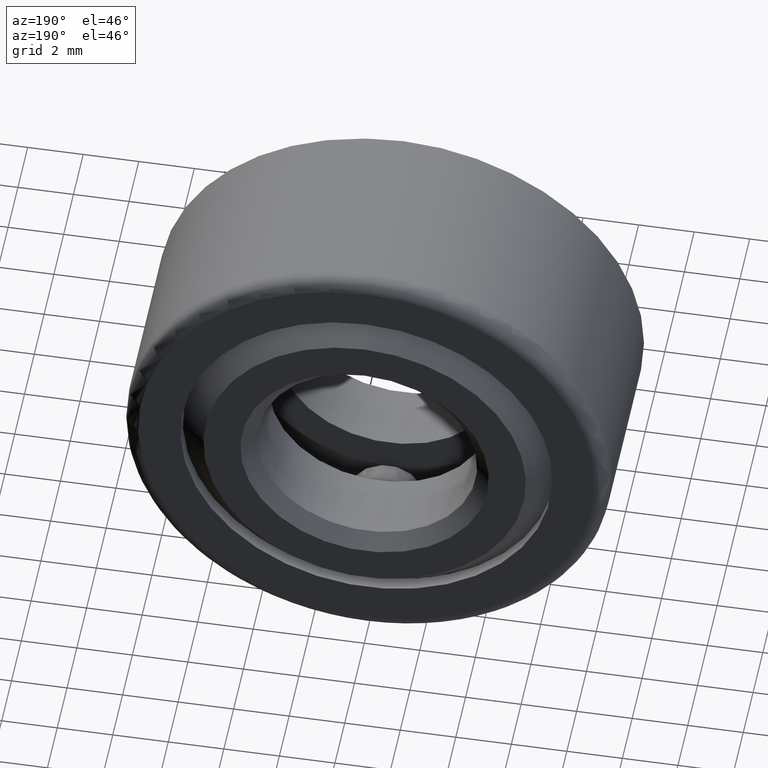
[diagram: clean part render]
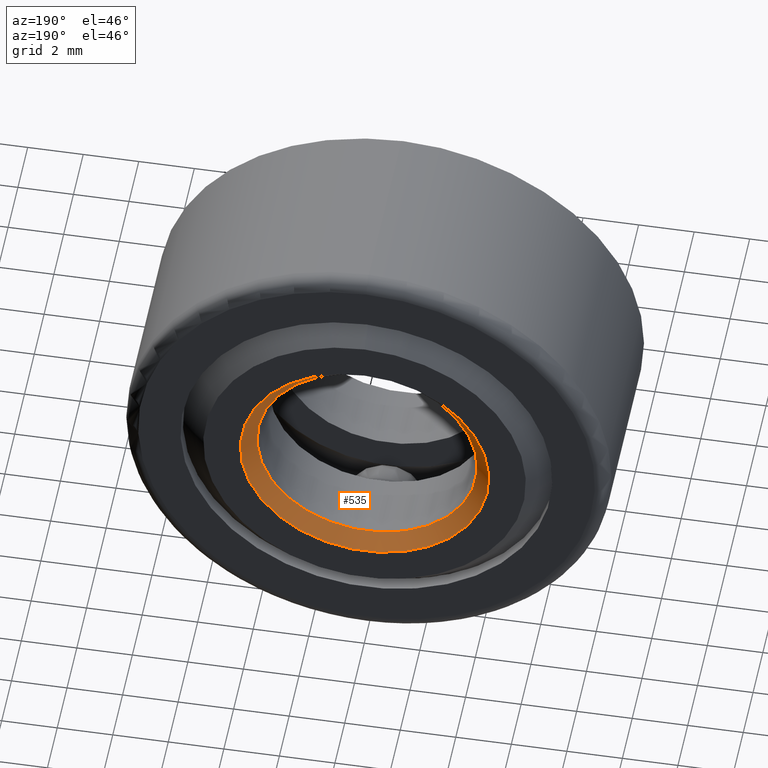
[diagram: same view with one face highlighted and labeled with its STEP entity id]
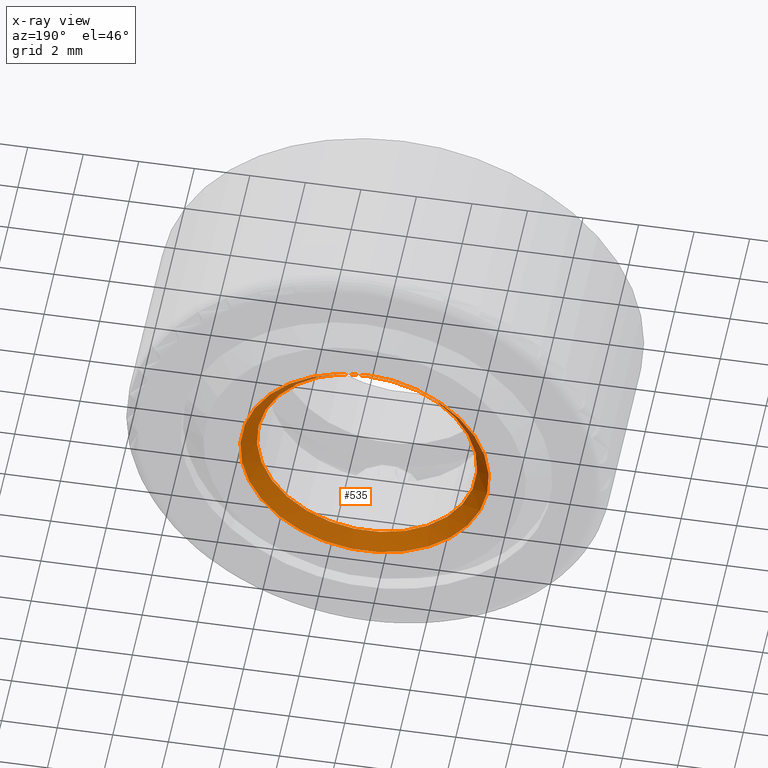
[diagram: x-ray of the same camera — body ghosted, the highlighted face saturated]
A machine part, auxiliary view. The second image highlights one B-rep face of the part: STEP entity #535.
The next image is the same camera in x-ray: the body ghosted, the highlighted face saturated — about 0% of this face is hidden behind the body in this view.
In plain terms, the highlighted conical surface has half-angle 45 deg.
Its self-contained STEP definition (entity closure, byte-faithful):
#10 = EDGE_LOOP ( 'NONE', ( #586 ) ) ;
#24 = DIRECTION ( 'NONE',  ( -0.0000000000000000000, 1.000000000000000000, -0.0000000000000000000 ) ) ;
#44 = FACE_BOUND ( 'NONE', #10, .T. ) ;
#85 = CONICAL_SURFACE ( 'NONE', #301, 0.1562500000000000800, 0.7853981633974508300 ) ;
#101 = DIRECTION ( 'NONE',  ( -0.0000000000000000000, 1.000000000000000000, -0.0000000000000000000 ) ) ;
#145 = DIRECTION ( 'NONE',  ( -0.0000000000000000000, 1.000000000000000000, -0.0000000000000000000 ) ) ;
#192 = CARTESIAN_POINT ( 'NONE',  ( 0.0000000000000000000, 0.3125000000000000600, 0.0000000000000000000 ) ) ;
#203 = EDGE_CURVE ( 'NONE', #472, #472, #484, .T. ) ;
#249 = CARTESIAN_POINT ( 'NONE',  ( 0.0000000000000000000, 0.2925000000000001500, 0.0000000000000000000 ) ) ;
#272 = EDGE_CURVE ( 'NONE', #456, #456, #335, .T. ) ;
#287 = DIRECTION ( 'NONE',  ( 0.0000000000000000000, 0.0000000000000000000, 1.000000000000000000 ) ) ;
#301 = AXIS2_PLACEMENT_3D ( 'NONE', #249, #24, #581 ) ;
#335 = CIRCLE ( 'NONE', #430, 0.1762500000000001000 ) ;
#425 = AXIS2_PLACEMENT_3D ( 'NONE', #568, #145, #287 ) ;
#430 = AXIS2_PLACEMENT_3D ( 'NONE', #192, #101, #431 ) ;
#431 = DIRECTION ( 'NONE',  ( 0.0000000000000000000, 0.0000000000000000000, 1.000000000000000000 ) ) ;
#433 = EDGE_LOOP ( 'NONE', ( #505 ) ) ;
#456 = VERTEX_POINT ( 'NONE', #547 ) ;
#472 = VERTEX_POINT ( 'NONE', #499 ) ;
#484 = CIRCLE ( 'NONE', #425, 0.1562500000000000800 ) ;
#499 = CARTESIAN_POINT ( 'NONE',  ( 0.0000000000000000000, 0.2925000000000001500, 0.1562500000000000800 ) ) ;
#505 = ORIENTED_EDGE ( 'NONE', *, *, #272, .T. ) ;
#520 = FACE_OUTER_BOUND ( 'NONE', #433, .T. ) ;
#535 = ADVANCED_FACE ( 'NONE', ( #520, #44 ), #85, .F. ) ;
#547 = CARTESIAN_POINT ( 'NONE',  ( 0.0000000000000000000, 0.3125000000000000600, 0.1762500000000001000 ) ) ;
#568 = CARTESIAN_POINT ( 'NONE',  ( 0.0000000000000000000, 0.2925000000000001500, 0.0000000000000000000 ) ) ;
#581 = DIRECTION ( 'NONE',  ( 0.0000000000000000000, 0.0000000000000000000, 1.000000000000000000 ) ) ;
#586 = ORIENTED_EDGE ( 'NONE', *, *, #203, .F. ) ;